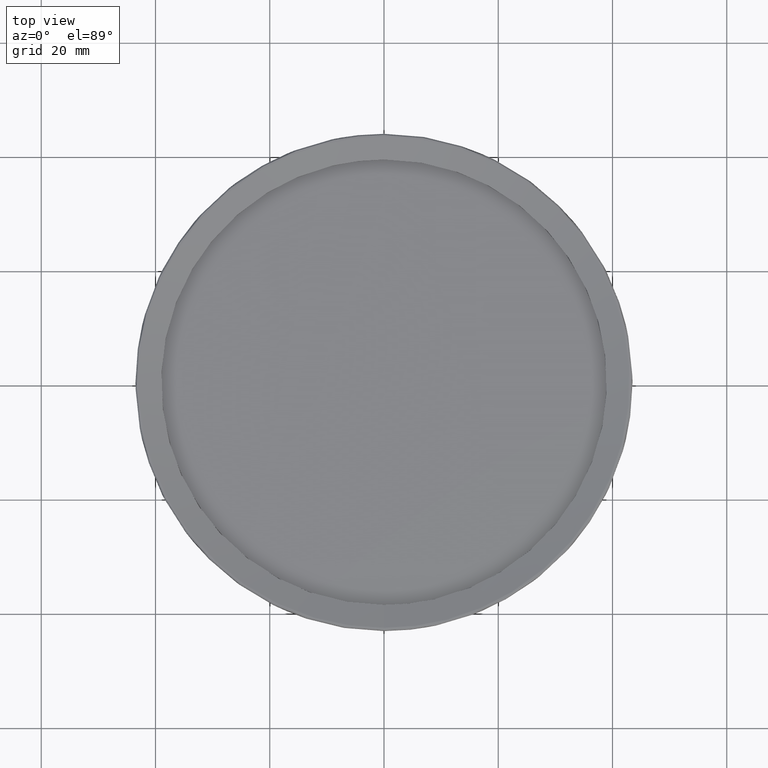
[diagram: clean part render]
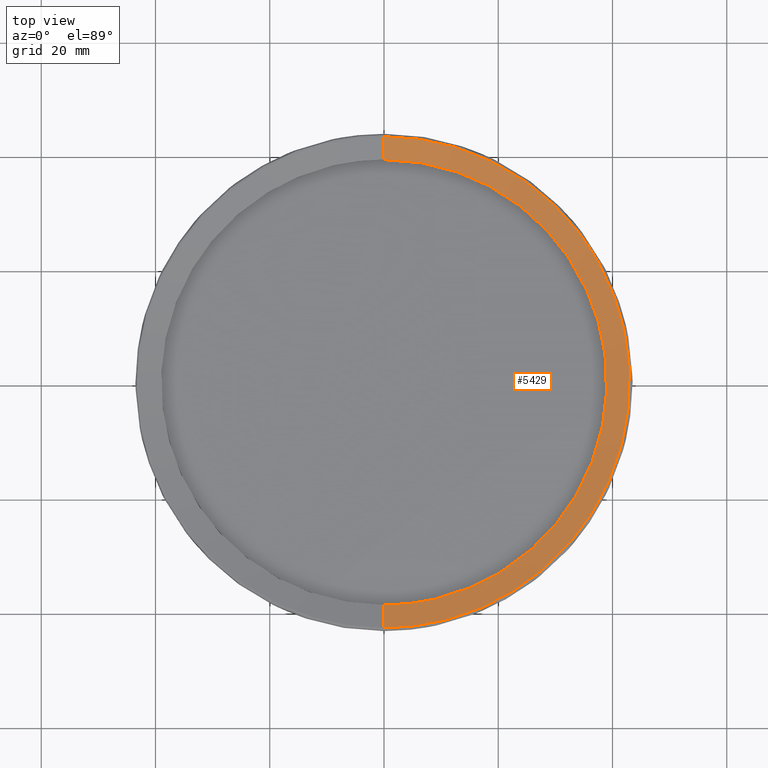
[diagram: same view with one face highlighted and labeled with its STEP entity id]
A machine part, top view. The second image highlights one B-rep face of the part: STEP entity #5429.
In plain terms, the highlighted face is a freeform B-spline surface patch.
Its self-contained STEP definition (entity closure, byte-faithful):
#315 = CARTESIAN_POINT ( 'NONE',  ( 40.80730576592861780, 13.84685537638100783, 55.51450328701998416 ) ) ;
#457 = CARTESIAN_POINT ( 'NONE',  ( 34.18456930594999221, 26.23713768080711972, 55.51450328702000547 ) ) ;
#466 = CARTESIAN_POINT ( 'NONE',  ( 0.7877753730590000281, 37.96185835200000014, 54.22387440480999743 ) ) ;
#476 = ORIENTED_EDGE ( 'NONE', *, *, #1952, .T. ) ;
#498 = B_SPLINE_CURVE_WITH_KNOTS ( 'NONE', 3,
 ( #5482, #11179, #10212, #9936, #4385, #8767, #1243, #7886, #3293, #1108, #2126, #7748, #10011, #4523, #7819, #10145 ),
 .UNSPECIFIED., .F., .F.,
 ( 4, 1, 1, 1, 1, 1, 1, 1, 1, 1, 1, 1, 1, 4 ),
 ( 0.000000000000000000, 0.06000000995571343199, 0.1400000081455728129, 0.2200000063354321800, 0.3000000045252915748, 0.3800000027151509419, 0.4600000009053286654, 0.5399999990951880324, 0.6199999972850475105, 0.6999999954749385189, 0.7799999936648298604, 0.8599999918547528432, 0.9399999900446760481, 1.000000000000000000 ),
 .UNSPECIFIED. ) ;
#540 = CARTESIAN_POINT ( 'NONE',  ( -2.772987293777999795, 44.07537089242000405, 55.80513216922999931 ) ) ;
#614 = CARTESIAN_POINT ( 'NONE',  ( 7.564282822033999487, 39.65353850663000657, 54.75096032627999421 ) ) ;
#688 = CARTESIAN_POINT ( 'NONE',  ( 39.51478985944000044, -15.64501212800999852, 55.27804624775999542 ) ) ;
#766 = CARTESIAN_POINT ( 'NONE',  ( 0.8755666867211000515, -42.19240620579999757, 55.27804624775999542 ) ) ;
#1070 = EDGE_CURVE ( 'NONE', #2023, #5592, #8144, .T. ) ;
#1108 = CARTESIAN_POINT ( 'NONE',  ( 36.64524253181733116, -14.50887796400980889, 54.51455720443581754 ) ) ;
#1176 = CARTESIAN_POINT ( 'NONE',  ( 2.238469987681605116E-15, 42.99999256903044653, 55.51453301072360347 ) ) ;
#1184 = CARTESIAN_POINT ( 'NONE',  ( 2.238469987681605116E-15, 42.99999256903044653, 55.51453301072360347 ) ) ;
#1227 = CARTESIAN_POINT ( 'NONE',  ( -1.740305875586991236E-09, -40.33331939306482639, 54.84789238109878085 ) ) ;
#1243 = CARTESIAN_POINT ( 'NONE',  ( 36.64524253181733116, 14.50887796400980889, 54.51455720443581754 ) ) ;
#1480 = CARTESIAN_POINT ( 'NONE',  ( 13.84685537662725885, -40.80730576557729705, 55.51450328702001258 ) ) ;
#1626 = CARTESIAN_POINT ( 'NONE',  ( 19.06391980681173237, -38.64633403037630899, 55.51450328702001968 ) ) ;
#1635 = CARTESIAN_POINT ( 'NONE',  ( 35.55272122040999960, -14.07631817492999993, 54.22387440480999743 ) ) ;
#1707 = CARTESIAN_POINT ( 'NONE',  ( 0.8755666867210000204, 42.19240620579999757, 55.27804624775999542 ) ) ;
#1779 = CARTESIAN_POINT ( 'NONE',  ( 32.65886728188999655, 23.72805555555000012, 54.75096032627999421 ) ) ;
#1810 = B_SPLINE_CURVE_WITH_KNOTS ( 'NONE', 3,
 ( #7098, #2570, #7316, #7025, #12578, #10385, #3957, #11774, #13823, #7171, #457, #3812, #5858, #315, #4758, #9507, #4833, #8261, #8410, #9213, #12725, #11628, #13676, #11480, #9289, #3664, #12654, #13750, #1626, #1480, #6076, #3738, #4976, #9434 ),
 .UNSPECIFIED., .F., .F.,
 ( 4, 2, 2, 2, 2, 2, 2, 2, 2, 2, 2, 2, 2, 2, 2, 2, 4 ),
 ( 0.000000000000000000, 0.06249999999999994449, 0.1249999999999998890, 0.1874999999999998335, 0.2499999999999997780, 0.3124999999999998335, 0.3749999999999998890, 0.4374999999999999445, 0.5000000000000000000, 0.5625000000000000000, 0.6250000000000001110, 0.6875000000000001110, 0.7500000000000002220, 0.8125000000000001110, 0.8750000000000001110, 0.9375000000000000000, 1.000000000000000000 ),
 .UNSPECIFIED. ) ;
#1856 = CARTESIAN_POINT ( 'NONE',  ( 7.963526213947001331, -41.74645512374000589, 55.27804624775999542 ) ) ;
#1928 = CARTESIAN_POINT ( 'NONE',  ( 0.8316710298899999687, 40.07713227889999530, 54.75096032627999421 ) ) ;
#1952 = EDGE_CURVE ( 'NONE', #5592, #5098, #498, .T. ) ;
#1966 = VERTEX_POINT ( 'NONE', #5687 ) ;
#2023 = VERTEX_POINT ( 'NONE', #1176 ) ;
#2126 = CARTESIAN_POINT ( 'NONE',  ( 31.88575444006464821, -23.16635620745602964, 54.51455720443581754 ) ) ;
#2570 = CARTESIAN_POINT ( 'NONE',  ( 2.823437059675054428, 43.00000000000001421, 55.51450328702001258 ) ) ;
#2724 = CARTESIAN_POINT ( 'NONE',  ( 37.93640528143000523, -4.792482499106999860, 54.22387440480999743 ) ) ;
#2795 = CARTESIAN_POINT ( 'NONE',  ( 27.09002977962000358, 32.74622376797000101, 55.27804624775999542 ) ) ;
#2870 = CARTESIAN_POINT ( 'NONE',  ( 24.37376688660999946, 29.46282566058999919, 54.22387440480999743 ) ) ;
#2943 = CARTESIAN_POINT ( 'NONE',  ( 16.28092441992000161, -34.59870743260999859, 54.22387440480999743 ) ) ;
#3015 = CARTESIAN_POINT ( 'NONE',  ( 7.165039430121999509, 37.56062188952999747, 54.22387440480999743 ) ) ;
#3293 = CARTESIAN_POINT ( 'NONE',  ( 39.10217627801000617, -4.939753624497716267, 54.51455720443581754 ) ) ;
#3347 = CARTESIAN_POINT ( 'NONE',  ( -5.662390664926919506E-16, -42.99999256903044653, 55.51453301072360347 ) ) ;
#3664 = CARTESIAN_POINT ( 'NONE',  ( 28.40910610844655793, -32.40207243048330099, 55.51450328701999126 ) ) ;
#3738 = CARTESIAN_POINT ( 'NONE',  ( 5.619698016654487205, -42.72458901911141993, 55.51450328702001968 ) ) ;
#3812 = CARTESIAN_POINT ( 'NONE',  ( 37.32181735205998052, 21.54190235889189964, 55.51450328702000547 ) ) ;
#3821 = CARTESIAN_POINT ( 'NONE',  ( 36.10634201450999825, -26.23279251643999999, 55.80513216922999931 ) ) ;
#3957 = CARTESIAN_POINT ( 'NONE',  ( 21.54190600602148820, 37.32182281163309767, 55.51450328702001258 ) ) ;
#3966 = CARTESIAN_POINT ( 'NONE',  ( 35.55272122040999960, 14.07631817492999993, 54.22387440480999743 ) ) ;
#4037 = CARTESIAN_POINT ( 'NONE',  ( 37.93640528143000523, 4.792482499106999860, 54.22387440480999743 ) ) ;
#4112 = CARTESIAN_POINT ( 'NONE',  ( 27.09002977962000358, -32.74622376797000101, 55.27804624775999542 ) ) ;
#4185 = CARTESIAN_POINT ( 'NONE',  ( -2.375835307626000148, -37.76282083870000150, 54.22387440480999743 ) ) ;
#4385 = CARTESIAN_POINT ( 'NONE',  ( 25.12276327419464650, 30.36820684728015962, 54.51455720443581754 ) ) ;
#4523 = CARTESIAN_POINT ( 'NONE',  ( 8.168218914912838358, -38.46043427424024230, 54.51455720443581754 ) ) ;
#4758 = CARTESIAN_POINT ( 'NONE',  ( 41.62294181271858662, 11.15808618233908156, 55.51450328702001258 ) ) ;
#4833 = CARTESIAN_POINT ( 'NONE',  ( 43.00000328292015439, 2.823453562083663826, 55.51450328702000547 ) ) ;
#4914 = CARTESIAN_POINT ( 'NONE',  ( 39.51478985944000044, 15.64501212800999852, 55.27804624775999542 ) ) ;
#4956 = B_SPLINE_SURFACE_WITH_KNOTS ( 'NONE', 3, 3, ( 
 ( #540, #8567, #5059, #9372 ),
 ( #13027, #1707, #1928, #466 ),
 ( #14126, #4985, #614, #3015 ),
 ( #6159, #9516, #13904, #7181 ),
 ( #8271, #2795, #9443, #2870 ),
 ( #10615, #8346, #1779, #13978 ),
 ( #13833, #4914, #8494, #3966 ),
 ( #8420, #7325, #12806, #4037 ),
 ( #11783, #6233, #10687, #2724 ),
 ( #11639, #688, #12734, #1635 ),
 ( #3821, #11859, #11711, #6085 ),
 ( #5135, #4112, #10541, #9588 ),
 ( #12952, #7252, #14051, #2943 ),
 ( #7403, #1856, #6309, #10762 ),
 ( #7476, #766, #5210, #6383 ),
 ( #13100, #5285, #10835, #4185 ) ),
 .UNSPECIFIED., .F., .F., .F.,
 ( 4, 1, 1, 1, 1, 1, 1, 1, 1, 1, 1, 1, 1, 4 ),
 ( 4, 4 ),
 ( -3.204424506661999850, -2.953097094373999809, -2.701769682086999858, -2.450442269799999906, -2.199114857512999954, -1.947787445226000003, -1.696460032937999962, -1.445132620651000011, -1.193805208363999837, -0.9424777960769000762, -0.6911503837897999825, -0.4398229715026000242, -0.1884955592153999826, 0.06283185307179998957 ),
 ( -11.04062888220999916, -9.459371117787998884 ),
 .UNSPECIFIED. ) ;
#4976 = CARTESIAN_POINT ( 'NONE',  ( 2.823403401090673004, -43.00000000000000000, 55.51450328702001258 ) ) ;
#4985 = CARTESIAN_POINT ( 'NONE',  ( 7.963526213947001331, 41.74645512374000589, 55.27804624775999542 ) ) ;
#5059 = CARTESIAN_POINT ( 'NONE',  ( -2.508219303009999734, 39.86700418993999762, 54.75096032627999421 ) ) ;
#5098 = VERTEX_POINT ( 'NONE', #6994 ) ;
#5135 = CARTESIAN_POINT ( 'NONE',  ( 28.44816122611999631, -34.38792282165000103, 55.80513216922999931 ) ) ;
#5210 = CARTESIAN_POINT ( 'NONE',  ( 0.8316710298900998888, -40.07713227889999530, 54.75096032627999421 ) ) ;
#5285 = CARTESIAN_POINT ( 'NONE',  ( -2.640603298394000209, -41.97118754117999373, 55.27804624775999542 ) ) ;
#5429 = ADVANCED_FACE ( 'NONE', ( #12878 ), #4956, .F. ) ;
#5482 = CARTESIAN_POINT ( 'NONE',  ( 3.752128238461795204E-16, 38.99987868636844723, 54.51453024572739992 ) ) ;
#5592 = VERTEX_POINT ( 'NONE', #8039 ) ;
#5659 = EDGE_LOOP ( 'NONE', ( #7488, #12916, #6982, #476 ) ) ;
#5687 = CARTESIAN_POINT ( 'NONE',  ( -5.662390664926919506E-16, -42.99999256903044653, 55.51453301072360347 ) ) ;
#5858 = CARTESIAN_POINT ( 'NONE',  ( 38.64633403003475820, 19.06391980703440581, 55.51450328702000547 ) ) ;
#6076 = CARTESIAN_POINT ( 'NONE',  ( 11.15806967677942652, -41.62294509555707833, 55.51450328702000547 ) ) ;
#6085 = CARTESIAN_POINT ( 'NONE',  ( 30.93512991559000014, -22.47568707510000152, 54.22387440480999743 ) ) ;
#6159 = CARTESIAN_POINT ( 'NONE',  ( 19.00249415540999820, 40.38233449255000096, 55.80513216922999931 ) ) ;
#6233 = CARTESIAN_POINT ( 'NONE',  ( 42.16411659250999833, -5.326566641220999543, 55.27804624775999542 ) ) ;
#6309 = CARTESIAN_POINT ( 'NONE',  ( 7.564282822033999487, -39.65353850663000657, 54.75096032627999421 ) ) ;
#6383 = CARTESIAN_POINT ( 'NONE',  ( 0.7877753730590000281, -37.96185835200000014, 54.22387440480999743 ) ) ;
#6795 = CARTESIAN_POINT ( 'NONE',  ( -1.740196974564229379E-09, 40.33331939306483349, 54.84789238109878795 ) ) ;
#6982 = ORIENTED_EDGE ( 'NONE', *, *, #1070, .T. ) ;
#6994 = CARTESIAN_POINT ( 'NONE',  ( -4.061650712693440045E-15, -38.99987868636844723, 54.51453024572739992 ) ) ;
#7025 = CARTESIAN_POINT ( 'NONE',  ( 11.15808490269033371, 41.62293537176562097, 55.51450328701999126 ) ) ;
#7098 = CARTESIAN_POINT ( 'NONE',  ( 2.238469987681605116E-15, 42.99999256903044653, 55.51453301072360347 ) ) ;
#7171 = CARTESIAN_POINT ( 'NONE',  ( 32.40207242765853124, 28.40910611187321777, 55.51450328702001258 ) ) ;
#7181 = CARTESIAN_POINT ( 'NONE',  ( 16.28092441992000161, 34.59870743260999859, 54.22387440480999743 ) ) ;
#7252 = CARTESIAN_POINT ( 'NONE',  ( 18.09530424357999934, -38.45445880591000076, 55.27804624775999542 ) ) ;
#7316 = CARTESIAN_POINT ( 'NONE',  ( 5.619682790693599550, 42.72459874291290305, 55.51450328702000547 ) ) ;
#7325 = CARTESIAN_POINT ( 'NONE',  ( 42.16411659250999833, 5.326566641220999543, 55.27804624775999542 ) ) ;
#7403 = CARTESIAN_POINT ( 'NONE',  ( 8.362769605860000510, -43.83937174084999100, 55.80513216922999931 ) ) ;
#7476 = CARTESIAN_POINT ( 'NONE',  ( 0.9194623435521001031, -44.30768013270000694, 55.80513216922999931 ) ) ;
#7488 = ORIENTED_EDGE ( 'NONE', *, *, #12524, .T. ) ;
#7748 = CARTESIAN_POINT ( 'NONE',  ( 25.12276327419464650, -30.36820684728015962, 54.51455720443581754 ) ) ;
#7819 = CARTESIAN_POINT ( 'NONE',  ( 2.450459542001975688, -38.99968061164627642, 54.51455720443581754 ) ) ;
#7868 = EDGE_CURVE ( 'NONE', #2023, #1966, #1810, .T. ) ;
#7870 = CARTESIAN_POINT ( 'NONE',  ( -1.797864347752538049E-09, -41.66665226556245472, 55.18122755776413157 ) ) ;
#7886 = CARTESIAN_POINT ( 'NONE',  ( 39.10217627801000617, 4.939753624497716267, 54.51455720443581754 ) ) ;
#7894 = CARTESIAN_POINT ( 'NONE',  ( 3.752128238461795204E-16, 38.99987868636844723, 54.51453024572739992 ) ) ;
#8039 = CARTESIAN_POINT ( 'NONE',  ( 3.752128238461795204E-16, 38.99987868636844723, 54.51453024572739992 ) ) ;
#8144 = B_SPLINE_CURVE_WITH_KNOTS ( 'NONE', 3,
 ( #1184, #12554, #6795, #7894 ),
 .UNSPECIFIED., .F., .F.,
 ( 4, 4 ),
 ( 0.000000000000000000, 1.000000000000000000 ),
 .UNSPECIFIED. ) ;
#8261 = CARTESIAN_POINT ( 'NONE',  ( 42.99999671707983140, -2.823453562058166888, 55.51450328702001258 ) ) ;
#8271 = CARTESIAN_POINT ( 'NONE',  ( 28.44816122611999631, 34.38792282165000103, 55.80513216922999931 ) ) ;
#8346 = CARTESIAN_POINT ( 'NONE',  ( 34.38260464820000095, 24.98042403599000139, 55.27804624775999542 ) ) ;
#8410 = CARTESIAN_POINT ( 'NONE',  ( 42.72459874204906782, -5.619682793169237911, 55.51450328702001258 ) ) ;
#8420 = CARTESIAN_POINT ( 'NONE',  ( 44.27797224805000553, 5.593608712277999828, 55.80513216922999931 ) ) ;
#8494 = CARTESIAN_POINT ( 'NONE',  ( 37.53375553992000135, 14.86066515147000011, 54.75096032627999421 ) ) ;
#8567 = CARTESIAN_POINT ( 'NONE',  ( -2.640603298394000209, 41.97118754117999373, 55.27804624775999542 ) ) ;
#8767 = CARTESIAN_POINT ( 'NONE',  ( 31.88575444006464821, 23.16635620745602964, 54.51455720443581754 ) ) ;
#8961 = CARTESIAN_POINT ( 'NONE',  ( -4.061650712693440045E-15, -38.99987868636844723, 54.51453024572739992 ) ) ;
#9213 = CARTESIAN_POINT ( 'NONE',  ( 41.62293537263433052, -11.15808490018969756, 55.51450328702002679 ) ) ;
#9289 = CARTESIAN_POINT ( 'NONE',  ( 32.40207707362363720, -28.40911075153277920, 55.51450328702000547 ) ) ;
#9372 = CARTESIAN_POINT ( 'NONE',  ( -2.375835307626000148, 37.76282083870000150, 54.22387440480999743 ) ) ;
#9434 = CARTESIAN_POINT ( 'NONE',  ( -5.662390664926919506E-16, -42.99999256903044653, 55.51453301072360347 ) ) ;
#9443 = CARTESIAN_POINT ( 'NONE',  ( 25.73189833310999930, 31.10452471428000010, 54.75096032627999421 ) ) ;
#9507 = CARTESIAN_POINT ( 'NONE',  ( 42.72459230195489965, 5.619681511069829938, 55.51450328702000547 ) ) ;
#9516 = CARTESIAN_POINT ( 'NONE',  ( 18.09530424357999934, 38.45445880591000076, 55.27804624775999542 ) ) ;
#9588 = CARTESIAN_POINT ( 'NONE',  ( 24.37376688660999946, -29.46282566058999919, 54.22387440480999743 ) ) ;
#9936 = CARTESIAN_POINT ( 'NONE',  ( 16.78123090245095383, 35.66191227094324745, 54.51455720443581754 ) ) ;
#10011 = CARTESIAN_POINT ( 'NONE',  ( 16.78123090245095383, -35.66191227094324745, 54.51455720443581754 ) ) ;
#10145 = CARTESIAN_POINT ( 'NONE',  ( -4.061650712693440045E-15, -38.99987868636844723, 54.51453024572739992 ) ) ;
#10212 = CARTESIAN_POINT ( 'NONE',  ( 8.168218914907146910, 38.46043427424210392, 54.51455720443581754 ) ) ;
#10385 = CARTESIAN_POINT ( 'NONE',  ( 19.06391729330122331, 38.64632796406009163, 55.51450328702001968 ) ) ;
#10541 = CARTESIAN_POINT ( 'NONE',  ( 25.73189833310999930, -31.10452471428000010, 54.75096032627999421 ) ) ;
#10615 = CARTESIAN_POINT ( 'NONE',  ( 36.10634201450999825, 26.23279251643999999, 55.80513216922999931 ) ) ;
#10687 = CARTESIAN_POINT ( 'NONE',  ( 40.05026093697000533, -5.059524570163999257, 54.75096032627999421 ) ) ;
#10762 = CARTESIAN_POINT ( 'NONE',  ( 7.165039430121999509, -37.56062188952999747, 54.22387440480999743 ) ) ;
#10835 = CARTESIAN_POINT ( 'NONE',  ( -2.508219303009999734, -39.86700418993999762, 54.75096032627999421 ) ) ;
#11179 = CARTESIAN_POINT ( 'NONE',  ( 2.450459541989046919, 38.99968061164747724, 54.51455720443581754 ) ) ;
#11480 = CARTESIAN_POINT ( 'NONE',  ( 34.18456384477754995, -26.23713403587064974, 55.51450328702001258 ) ) ;
#11538 = B_SPLINE_CURVE_WITH_KNOTS ( 'NONE', 3,
 ( #8961, #1227, #7870, #3347 ),
 .UNSPECIFIED., .F., .F.,
 ( 4, 4 ),
 ( 0.000000000000000000, 1.000000000000000000 ),
 .UNSPECIFIED. ) ;
#11628 = CARTESIAN_POINT ( 'NONE',  ( 38.64632796428038830, -19.06391729317065753, 55.51450328701999126 ) ) ;
#11639 = CARTESIAN_POINT ( 'NONE',  ( 41.49582417895999953, -16.42935910454999870, 55.80513216922999931 ) ) ;
#11711 = CARTESIAN_POINT ( 'NONE',  ( 32.65886728188999655, -23.72805555555000012, 54.75096032627999421 ) ) ;
#11774 = CARTESIAN_POINT ( 'NONE',  ( 26.23713403365642449, 34.18456384639111434, 55.51450328702001968 ) ) ;
#11783 = CARTESIAN_POINT ( 'NONE',  ( 44.27797224805000553, -5.593608712277999828, 55.80513216922999931 ) ) ;
#11859 = CARTESIAN_POINT ( 'NONE',  ( 34.38260464820000095, -24.98042403599000139, 55.27804624775999542 ) ) ;
#12524 = EDGE_CURVE ( 'NONE', #5098, #1966, #11538, .T. ) ;
#12554 = CARTESIAN_POINT ( 'NONE',  ( -1.797750583125021787E-09, 41.66665226556248314, 55.18122755776414579 ) ) ;
#12578 = CARTESIAN_POINT ( 'NONE',  ( 13.84685789009068557, 40.80731183191302591, 55.51450328702001258 ) ) ;
#12654 = CARTESIAN_POINT ( 'NONE',  ( 26.23713768391772305, -34.18456930440790842, 55.51450328701999126 ) ) ;
#12725 = CARTESIAN_POINT ( 'NONE',  ( 40.80731183170253473, -13.84685789019765245, 55.51450328701999837 ) ) ;
#12734 = CARTESIAN_POINT ( 'NONE',  ( 37.53375553992000135, -14.86066515147000011, 54.75096032627999421 ) ) ;
#12806 = CARTESIAN_POINT ( 'NONE',  ( 40.05026093697000533, 5.059524570163999257, 54.75096032627999421 ) ) ;
#12878 = FACE_OUTER_BOUND ( 'NONE', #5659, .T. ) ;
#12916 = ORIENTED_EDGE ( 'NONE', *, *, #7868, .F. ) ;
#12952 = CARTESIAN_POINT ( 'NONE',  ( 19.00249415540999820, -40.38233449255000096, 55.80513216922999931 ) ) ;
#13027 = CARTESIAN_POINT ( 'NONE',  ( 0.9194623435521001031, 44.30768013270000694, 55.80513216922999931 ) ) ;
#13100 = CARTESIAN_POINT ( 'NONE',  ( -2.772987293777999795, -44.07537089242000405, 55.80513216922999931 ) ) ;
#13676 = CARTESIAN_POINT ( 'NONE',  ( 37.32182281326087292, -21.54190600378597509, 55.51450328701999837 ) ) ;
#13750 = CARTESIAN_POINT ( 'NONE',  ( 21.54190235580258062, -37.32181735358802399, 55.51450328702001258 ) ) ;
#13823 = CARTESIAN_POINT ( 'NONE',  ( 28.40911075437559674, 32.40207707017888339, 55.51450328702001258 ) ) ;
#13833 = CARTESIAN_POINT ( 'NONE',  ( 41.49582417895999953, 16.42935910454999870, 55.80513216922999931 ) ) ;
#13904 = CARTESIAN_POINT ( 'NONE',  ( 17.18811433175000047, 36.52658311926000323, 54.75096032627999421 ) ) ;
#13978 = CARTESIAN_POINT ( 'NONE',  ( 30.93512991559000014, 22.47568707510000152, 54.22387440480999743 ) ) ;
#14051 = CARTESIAN_POINT ( 'NONE',  ( 17.18811433175000047, -36.52658311926000323, 54.75096032627999421 ) ) ;
#14126 = CARTESIAN_POINT ( 'NONE',  ( 8.362769605860000510, 43.83937174084999100, 55.80513216922999931 ) ) ;